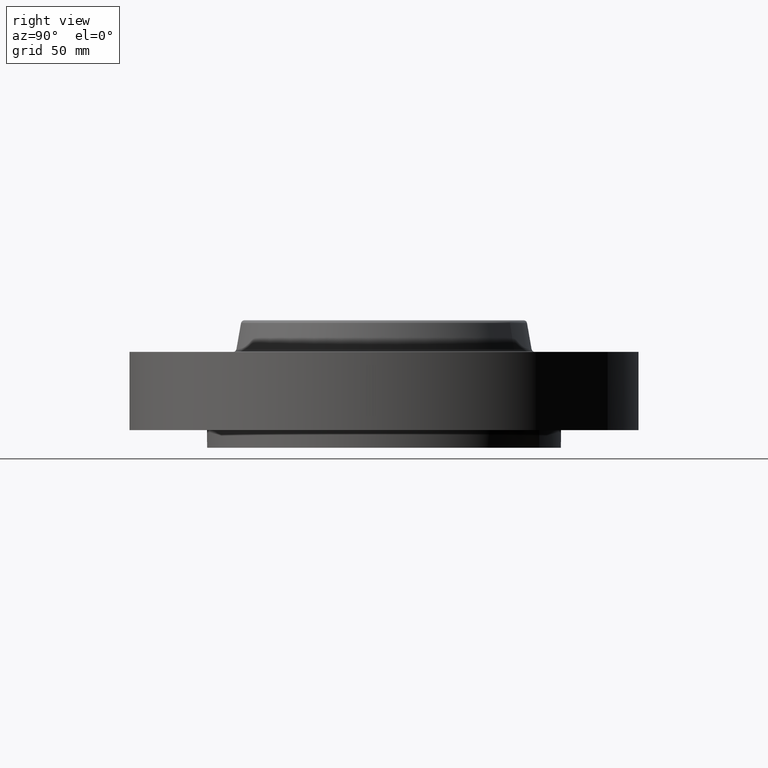
[diagram: clean part render]
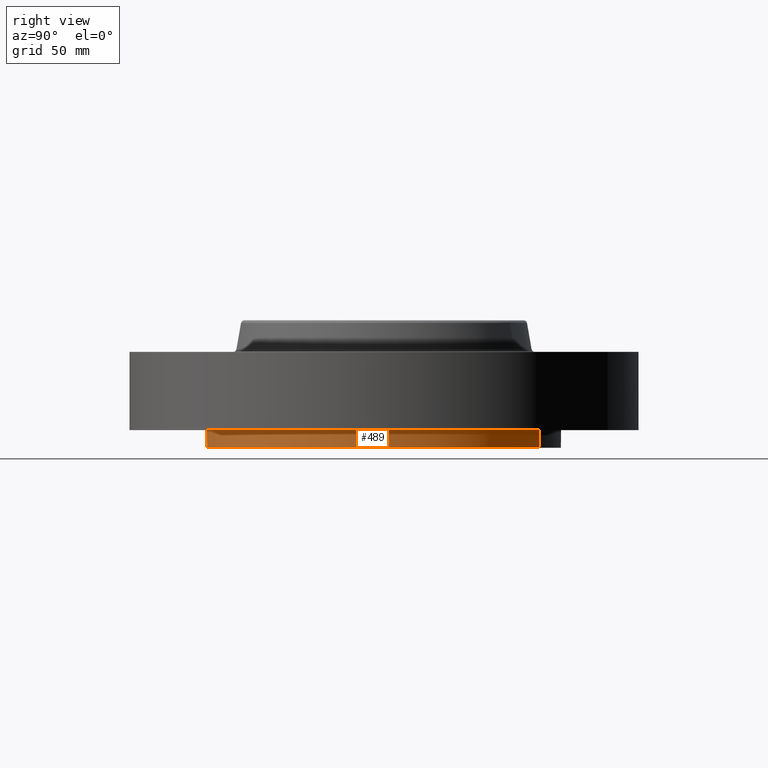
[diagram: same view with one face highlighted and labeled with its STEP entity id]
A machine part, right view. The second image highlights one B-rep face of the part: STEP entity #489.
In plain terms, the highlighted cylindrical surface (partial cylindrical patch) has radius 79.375 mm, axis along (0, 0, -1).
Its self-contained STEP definition (entity closure, byte-faithful):
#374=AXIS2_PLACEMENT_3D('Cylinder Axis2P3D',#371,#372,#373) ;
#443=AXIS2_PLACEMENT_3D('Circle Axis2P3D',#441,#442,$) ;
#448=AXIS2_PLACEMENT_3D('Circle Axis2P3D',#446,#447,$) ;
#455=AXIS2_PLACEMENT_3D('Circle Axis2P3D',#453,#454,$) ;
#462=AXIS2_PLACEMENT_3D('Circle Axis2P3D',#460,#461,$) ;
#469=AXIS2_PLACEMENT_3D('Circle Axis2P3D',#467,#468,$) ;
#476=AXIS2_PLACEMENT_3D('Circle Axis2P3D',#474,#475,$) ;
#371=CARTESIAN_POINT('Axis2P3D Location',(0.,0.,0.813750000003)) ;
#380=CARTESIAN_POINT('Vertex',(-1.49820480814,-2.74244550592,-0.312500000001)) ;
#382=CARTESIAN_POINT('Vertex',(1.49820480814,2.74244550592,-0.312500000001)) ;
#385=CARTESIAN_POINT('Line Origine',(-1.49820480814,-2.74244550592,-0.156250000001)) ;
#389=CARTESIAN_POINT('Vertex',(-1.49820480814,-2.74244550592,2.79741234551E-016)) ;
#422=CARTESIAN_POINT('Vertex',(1.49820480814,2.74244550592,2.79741234551E-016)) ;
#425=CARTESIAN_POINT('Line Origine',(1.49820480814,2.74244550592,-0.156250000001)) ;
#441=CARTESIAN_POINT('Axis2P3D Location',(0.,0.,-0.312500000001)) ;
#446=CARTESIAN_POINT('Axis2P3D Location',(0.,0.,2.79741234551E-016)) ;
#450=CARTESIAN_POINT('Vertex',(2.20970869122,2.20970869122,0.)) ;
#453=CARTESIAN_POINT('Axis2P3D Location',(0.,0.,2.79741234551E-016)) ;
#457=CARTESIAN_POINT('Vertex',(3.12500000001,0.,0.)) ;
#460=CARTESIAN_POINT('Axis2P3D Location',(0.,0.,2.79741234551E-016)) ;
#464=CARTESIAN_POINT('Vertex',(2.20970869122,-2.20970869122,0.)) ;
#467=CARTESIAN_POINT('Axis2P3D Location',(0.,0.,2.79741234551E-016)) ;
#471=CARTESIAN_POINT('Vertex',(8.29897616581E-017,-3.12500000001,0.)) ;
#474=CARTESIAN_POINT('Axis2P3D Location',(0.,0.,2.79741234551E-016)) ;
#372=DIRECTION('Axis2P3D Direction',(0.,0.,-0.0393700787402)) ;
#373=DIRECTION('Axis2P3D XDirection',(0.0188750212049,0.0345504945626,0.)) ;
#386=DIRECTION('Vector Direction',(0.,0.,-0.0393700787402)) ;
#426=DIRECTION('Vector Direction',(0.,0.,-0.0393700787402)) ;
#442=DIRECTION('Axis2P3D Direction',(0.,0.,-0.0393700787402)) ;
#447=DIRECTION('Axis2P3D Direction',(0.,0.,-0.0393700787402)) ;
#454=DIRECTION('Axis2P3D Direction',(0.,0.,-0.0393700787402)) ;
#461=DIRECTION('Axis2P3D Direction',(0.,0.,-0.0393700787402)) ;
#468=DIRECTION('Axis2P3D Direction',(0.,0.,-0.0393700787402)) ;
#475=DIRECTION('Axis2P3D Direction',(0.,0.,-0.0393700787402)) ;
#387=VECTOR('Line Direction',#386,0.0393700787402) ;
#427=VECTOR('Line Direction',#426,0.0393700787402) ;
#480=ORIENTED_EDGE('',*,*,#445,.F.) ;
#481=ORIENTED_EDGE('',*,*,#429,.T.) ;
#482=ORIENTED_EDGE('',*,*,#452,.T.) ;
#483=ORIENTED_EDGE('',*,*,#459,.T.) ;
#484=ORIENTED_EDGE('',*,*,#466,.T.) ;
#485=ORIENTED_EDGE('',*,*,#473,.T.) ;
#486=ORIENTED_EDGE('',*,*,#478,.T.) ;
#487=ORIENTED_EDGE('',*,*,#391,.F.) ;
#489=ADVANCED_FACE('PartBody',(#488),#375,.T.) ;
#444=CIRCLE('generated circle',#443,3.12500000001) ;
#449=CIRCLE('generated circle',#448,3.12500000001) ;
#456=CIRCLE('generated circle',#455,3.12500000001) ;
#463=CIRCLE('generated circle',#462,3.12500000001) ;
#470=CIRCLE('generated circle',#469,3.12500000001) ;
#477=CIRCLE('generated circle',#476,3.12500000001) ;
#375=CYLINDRICAL_SURFACE('generated cylinder',#374,3.12500000001) ;
#391=EDGE_CURVE('',#381,#390,#388,.F.) ;
#429=EDGE_CURVE('',#383,#423,#428,.F.) ;
#445=EDGE_CURVE('',#383,#381,#444,.T.) ;
#452=EDGE_CURVE('',#423,#451,#449,.T.) ;
#459=EDGE_CURVE('',#451,#458,#456,.T.) ;
#466=EDGE_CURVE('',#458,#465,#463,.T.) ;
#473=EDGE_CURVE('',#465,#472,#470,.T.) ;
#478=EDGE_CURVE('',#472,#390,#477,.T.) ;
#479=EDGE_LOOP('',(#480,#481,#482,#483,#484,#485,#486,#487)) ;
#488=FACE_OUTER_BOUND('',#479,.T.) ;
#388=LINE('Line',#385,#387) ;
#428=LINE('Line',#425,#427) ;
#381=VERTEX_POINT('',#380) ;
#383=VERTEX_POINT('',#382) ;
#390=VERTEX_POINT('',#389) ;
#423=VERTEX_POINT('',#422) ;
#451=VERTEX_POINT('',#450) ;
#458=VERTEX_POINT('',#457) ;
#465=VERTEX_POINT('',#464) ;
#472=VERTEX_POINT('',#471) ;